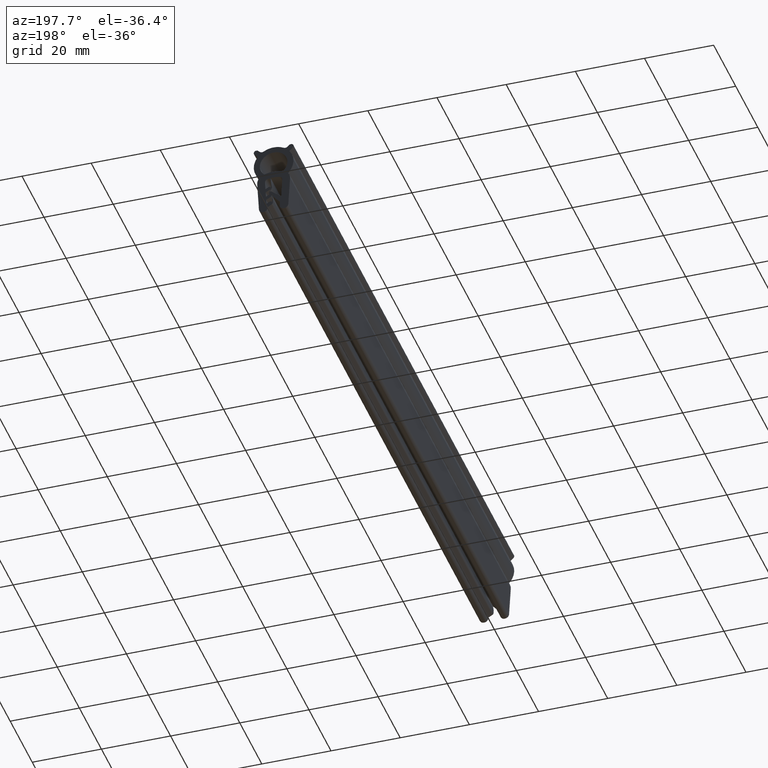
[diagram: clean part render]
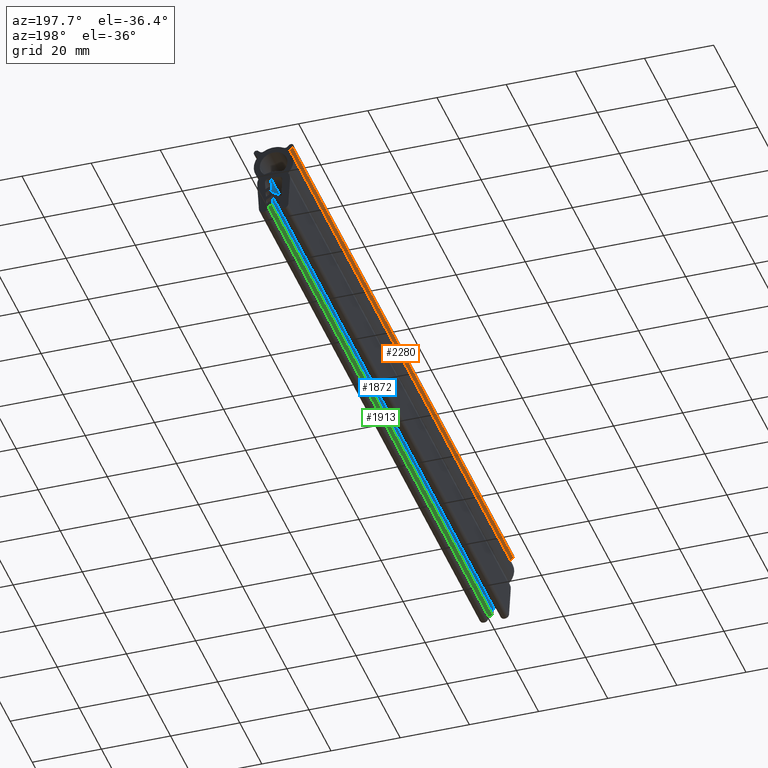
[diagram: same view with three faces highlighted in distinct colors, each labeled with its STEP entity id]
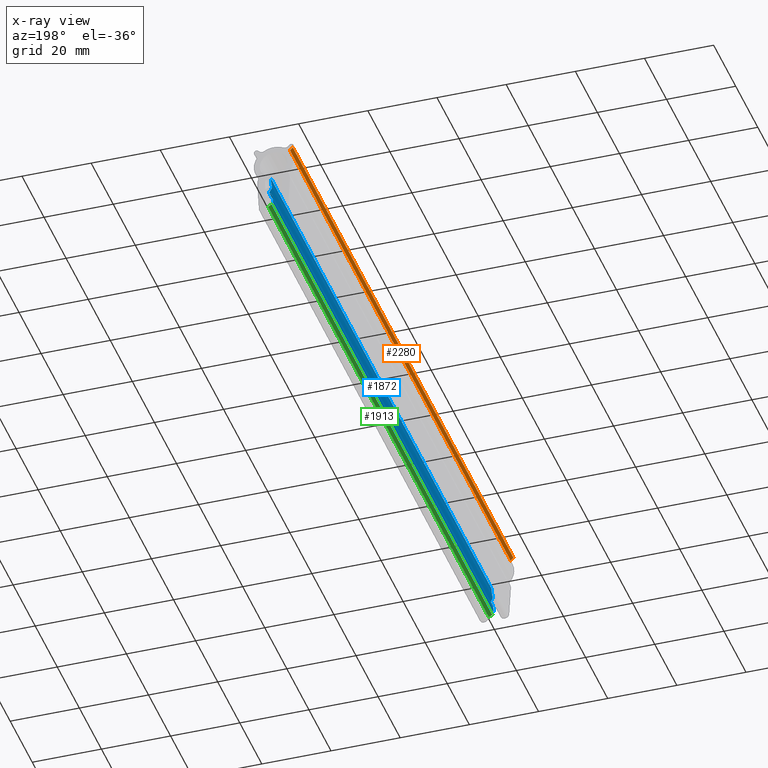
[diagram: x-ray of the same camera — body ghosted, the three highlighted faces saturated]
A machine part, auxiliary view with three faces highlighted in distinct colors.
The next image is the same camera in x-ray (body ghosted, the three faces saturated) — at least one of them is partly hidden behind the body in this view.
Their STEP definitions:

[orange] entity #2280 — the highlighted face is a freeform B-spline surface patch.
#531=CARTESIAN_POINT('',(-5.530330085891140,0.0,-1.280330090854470));
#532=VERTEX_POINT('',#531);
#550=CARTESIAN_POINT('',(-4.713625175068700,0.0,-2.097035001674310));
#551=VERTEX_POINT('',#550);
#552=CARTESIAN_POINT('',(-4.713625175068700,0.0,-2.097035001674310));
#553=CARTESIAN_POINT('',(-5.530330085891140,0.0,-1.280330090854470));
#554=QUASI_UNIFORM_CURVE('',1,(#552,#553),.UNSPECIFIED.,.F.,.U.);
#555=EDGE_CURVE('',#551,#532,#554,.T.);
#867=CARTESIAN_POINT('',(-4.713625175068700,200.0,-2.097035001674310));
#868=VERTEX_POINT('',#867);
#882=CARTESIAN_POINT('',(-5.530330085891140,200.0,-1.280330090854470));
#883=VERTEX_POINT('',#882);
#884=CARTESIAN_POINT('',(-4.713625175068700,200.0,-2.097035001674310));
#885=CARTESIAN_POINT('',(-5.530330085891140,200.0,-1.280330090854470));
#886=QUASI_UNIFORM_CURVE('',1,(#884,#885),.UNSPECIFIED.,.F.,.U.);
#887=EDGE_CURVE('',#868,#883,#886,.T.);
#2257=CARTESIAN_POINT('',(-5.530330085891140,200.0,-1.280330090854470));
#2258=CARTESIAN_POINT('',(-5.530330085891140,0.0,-1.280330090854470));
#2259=QUASI_UNIFORM_CURVE('',1,(#2257,#2258),.UNSPECIFIED.,.F.,.U.);
#2260=EDGE_CURVE('',#883,#532,#2259,.T.);
#2265=CARTESIAN_POINT('',(-5.571124566521406,-9.989999612361183,-1.239535610224336));
#2266=CARTESIAN_POINT('',(-4.672830679834593,-9.989999612361183,-2.137829496908246));
#2267=CARTESIAN_POINT('',(-5.571124566521406,209.990004976779200,-1.239535610224336));
#2268=CARTESIAN_POINT('',(-4.672830679834593,209.990004976779200,-2.137829496908246));
#2269=B_SPLINE_SURFACE_WITH_KNOTS('',1,1,((#2265,#2267),(#2266,#2268)),.UNSPECIFIED.,.F.,.F.,.U.,(2,2),(2,2),(0.041708261566609,0.958291753334552),(0.0,219.980004589140410),.UNSPECIFIED.);
#2270=ORIENTED_EDGE('',*,*,#555,.T.);
#2271=ORIENTED_EDGE('',*,*,#2260,.F.);
#2272=ORIENTED_EDGE('',*,*,#887,.F.);
#2273=CARTESIAN_POINT('',(-4.713625175068700,200.0,-2.097035001674310));
#2274=CARTESIAN_POINT('',(-4.713625175068700,0.0,-2.097035001674310));
#2275=QUASI_UNIFORM_CURVE('',1,(#2273,#2274),.UNSPECIFIED.,.F.,.U.);
#2276=EDGE_CURVE('',#868,#551,#2275,.T.);
#2277=ORIENTED_EDGE('',*,*,#2276,.T.);
#2278=EDGE_LOOP('',(#2270,#2271,#2272,#2277));
#2279=FACE_OUTER_BOUND('',#2278,.T.);
#2280=ADVANCED_FACE('',(#2279),#2269,.F.);

[blue] entity #1872 — the highlighted face is a freeform B-spline surface patch.
#303=CARTESIAN_POINT('',(0.849311063447986,0.0,-10.311185044823921));
#304=VERTEX_POINT('',#303);
#310=CARTESIAN_POINT('',(0.230599169711542,0.0,-18.812679840793098));
#311=VERTEX_POINT('',#310);
#312=CARTESIAN_POINT('',(0.230599169711543,0.0,-18.812679840793098));
#313=CARTESIAN_POINT('',(0.102305031512055,0.0,-18.062404450542349));
#314=CARTESIAN_POINT('',(0.282324142546382,0.0,-17.043546452097001));
#315=CARTESIAN_POINT('',(0.558853288640762,0.0,-15.747530114465500));
#316=CARTESIAN_POINT('',(1.312969142138676,0.0,-15.523041864377999));
#317=CARTESIAN_POINT('',(1.099577878881012,0.0,-14.685757533817281));
#318=CARTESIAN_POINT('',(0.196522846896767,0.0,-13.834720515642680));
#319=CARTESIAN_POINT('',(0.799109094746658,0.0,-12.051095444185441));
#320=CARTESIAN_POINT('',(0.797147904851861,0.0,-10.900677077333700));
#321=CARTESIAN_POINT('',(0.849311063447986,0.0,-10.311185044823921));
#322=B_SPLINE_CURVE_WITH_KNOTS('',3,(#312,#313,#314,#315,#316,#317,#318,#319,#320,#321),.UNSPECIFIED.,.F.,.U.,(4,1,1,1,1,1,1,4),(0.0,0.253754393163780,0.344760346092630,0.417671691379562,0.448313659490894,0.604227959092973,0.802636675275775,1.0),.UNSPECIFIED.);
#323=EDGE_CURVE('',#311,#304,#322,.T.);
#1099=CARTESIAN_POINT('',(0.230599169711542,200.0,-18.812679840793098));
#1100=VERTEX_POINT('',#1099);
#1114=CARTESIAN_POINT('',(0.849311063447986,200.0,-10.311185044823921));
#1115=VERTEX_POINT('',#1114);
#1116=CARTESIAN_POINT('',(0.230599169711543,199.999999999999890,-18.812679840793098));
#1117=CARTESIAN_POINT('',(0.102305031512055,199.999999999999890,-18.062404450542349));
#1118=CARTESIAN_POINT('',(0.282324142546382,199.999999999999890,-17.043546452097001));
#1119=CARTESIAN_POINT('',(0.558853288640762,199.999999999999890,-15.747530114465500));
#1120=CARTESIAN_POINT('',(1.312969142138676,199.999999999999890,-15.523041864377999));
#1121=CARTESIAN_POINT('',(1.099577878881012,199.999999999999890,-14.685757533817281));
#1122=CARTESIAN_POINT('',(0.196522846896767,199.999999999999890,-13.834720515642680));
#1123=CARTESIAN_POINT('',(0.799109094746658,199.999999999999890,-12.051095444185441));
#1124=CARTESIAN_POINT('',(0.797147904851861,199.999999999999890,-10.900677077333700));
#1125=CARTESIAN_POINT('',(0.849311063447986,199.999999999999890,-10.311185044823921));
#1126=B_SPLINE_CURVE_WITH_KNOTS('',3,(#1116,#1117,#1118,#1119,#1120,#1121,#1122,#1123,#1124,#1125),.UNSPECIFIED.,.F.,.U.,(4,1,1,1,1,1,1,4),(0.0,0.253754393163780,0.344760346092630,0.417671691379562,0.448313659490894,0.604227959092973,0.802636675275775,1.0),.UNSPECIFIED.);
#1127=EDGE_CURVE('',#1100,#1115,#1126,.T.);
#1833=CARTESIAN_POINT('',(0.849311063447986,200.0,-10.311185044823921));
#1834=CARTESIAN_POINT('',(0.849311063447986,0.0,-10.311185044823921));
#1835=QUASI_UNIFORM_CURVE('',1,(#1833,#1834),.UNSPECIFIED.,.F.,.U.);
#1836=EDGE_CURVE('',#1115,#304,#1835,.T.);
#1841=CARTESIAN_POINT('',(0.230599169711543,199.999999999999890,-18.812679840793098));
#1842=CARTESIAN_POINT('',(0.102305031512055,199.999999999999890,-18.062404450542349));
#1843=CARTESIAN_POINT('',(0.282324142546382,199.999999999999890,-17.043546452097001));
#1844=CARTESIAN_POINT('',(0.558853288640762,199.999999999999890,-15.747530114465500));
#1845=CARTESIAN_POINT('',(1.312969142138676,199.999999999999890,-15.523041864377999));
#1846=CARTESIAN_POINT('',(1.099577878881012,199.999999999999890,-14.685757533817281));
#1847=CARTESIAN_POINT('',(0.196522846896767,199.999999999999890,-13.834720515642680));
#1848=CARTESIAN_POINT('',(0.799109094746658,199.999999999999890,-12.051095444185441));
#1849=CARTESIAN_POINT('',(0.797147904851861,199.999999999999890,-10.900677077333700));
#1850=CARTESIAN_POINT('',(0.849311063447986,199.999999999999890,-10.311185044823921));
#1851=CARTESIAN_POINT('',(0.230599169711543,0.0,-18.812679840793098));
#1852=CARTESIAN_POINT('',(0.102305031512055,0.0,-18.062404450542349));
#1853=CARTESIAN_POINT('',(0.282324142546382,0.0,-17.043546452097001));
#1854=CARTESIAN_POINT('',(0.558853288640762,0.0,-15.747530114465500));
#1855=CARTESIAN_POINT('',(1.312969142138676,0.0,-15.523041864377999));
#1856=CARTESIAN_POINT('',(1.099577878881012,0.0,-14.685757533817281));
#1857=CARTESIAN_POINT('',(0.196522846896767,0.0,-13.834720515642680));
#1858=CARTESIAN_POINT('',(0.799109094746658,0.0,-12.051095444185441));
#1859=CARTESIAN_POINT('',(0.797147904851861,0.0,-10.900677077333700));
#1860=CARTESIAN_POINT('',(0.849311063447986,0.0,-10.311185044823921));
#1861=B_SPLINE_SURFACE_WITH_KNOTS('',3,1,((#1841,#1851),(#1842,#1852),(#1843,#1853),(#1844,#1854),(#1845,#1855),(#1846,#1856),(#1847,#1857),(#1848,#1858),(#1849,#1859),(#1850,#1860)),.UNSPECIFIED.,.F.,.F.,.U.,(4,1,1,1,1,1,1,4),(2,2),(0.0,2.373538443559314,3.224779382390892,3.906769076647984,4.193384367882068,5.651757479741093,7.507609942138376,9.353684143026312),(0.0,199.999999999999890),.UNSPECIFIED.);
#1862=ORIENTED_EDGE('',*,*,#323,.T.);
#1863=ORIENTED_EDGE('',*,*,#1836,.F.);
#1864=ORIENTED_EDGE('',*,*,#1127,.F.);
#1865=CARTESIAN_POINT('',(0.230599169711542,200.0,-18.812679840793098));
#1866=CARTESIAN_POINT('',(0.230599169711542,0.0,-18.812679840793098));
#1867=QUASI_UNIFORM_CURVE('',1,(#1865,#1866),.UNSPECIFIED.,.F.,.U.);
#1868=EDGE_CURVE('',#1100,#311,#1867,.T.);
#1869=ORIENTED_EDGE('',*,*,#1868,.T.);
#1870=EDGE_LOOP('',(#1862,#1863,#1864,#1869));
#1871=FACE_OUTER_BOUND('',#1870,.T.);
#1872=ADVANCED_FACE('',(#1871),#1861,.F.);

[green] entity #1913 — the highlighted face is a freeform B-spline surface patch.
#325=CARTESIAN_POINT('',(0.604677625245561,0.0,-19.425030796358449));
#326=VERTEX_POINT('',#325);
#340=CARTESIAN_POINT('',(1.623487153696905,0.0,-20.013240751863449));
#341=VERTEX_POINT('',#340);
#342=CARTESIAN_POINT('',(1.623487153696905,0.0,-20.013240751863449));
#343=CARTESIAN_POINT('',(0.604677625245561,0.0,-19.425030796358449));
#344=QUASI_UNIFORM_CURVE('',1,(#342,#343),.UNSPECIFIED.,.F.,.U.);
#345=EDGE_CURVE('',#341,#326,#344,.T.);
#1077=CARTESIAN_POINT('',(1.623487153696905,200.0,-20.013240751863449));
#1078=VERTEX_POINT('',#1077);
#1092=CARTESIAN_POINT('',(0.604677625245561,200.0,-19.425030796358449));
#1093=VERTEX_POINT('',#1092);
#1094=CARTESIAN_POINT('',(1.623487153696905,200.0,-20.013240751863449));
#1095=CARTESIAN_POINT('',(0.604677625245561,200.0,-19.425030796358449));
#1096=QUASI_UNIFORM_CURVE('',1,(#1094,#1095),.UNSPECIFIED.,.F.,.U.);
#1097=EDGE_CURVE('',#1078,#1093,#1096,.T.);
#1890=CARTESIAN_POINT('',(0.604677625245561,200.0,-19.425030796358449));
#1891=CARTESIAN_POINT('',(0.604677625245561,0.0,-19.425030796358449));
#1892=QUASI_UNIFORM_CURVE('',1,(#1890,#1891),.UNSPECIFIED.,.F.,.U.);
#1893=EDGE_CURVE('',#1093,#326,#1892,.T.);
#1898=CARTESIAN_POINT('',(0.553788473828274,-9.989999612361183,-19.395649931088791));
#1899=CARTESIAN_POINT('',(1.674376696795509,-9.989999612361183,-20.042621843270350));
#1900=CARTESIAN_POINT('',(0.553788473828274,209.990004976779200,-19.395649931088791));
#1901=CARTESIAN_POINT('',(1.674376696795509,209.990004976779200,-20.042621843270350));
#1902=B_SPLINE_SURFACE_WITH_KNOTS('',1,1,((#1898,#1900),(#1899,#1901)),.UNSPECIFIED.,.F.,.F.,.U.,(2,2),(2,2),(0.041708647857979,0.958291672516987),(0.0,219.980004589140410),.UNSPECIFIED.);
#1903=ORIENTED_EDGE('',*,*,#345,.T.);
#1904=ORIENTED_EDGE('',*,*,#1893,.F.);
#1905=ORIENTED_EDGE('',*,*,#1097,.F.);
#1906=CARTESIAN_POINT('',(1.623487153696905,200.0,-20.013240751863449));
#1907=CARTESIAN_POINT('',(1.623487153696905,0.0,-20.013240751863449));
#1908=QUASI_UNIFORM_CURVE('',1,(#1906,#1907),.UNSPECIFIED.,.F.,.U.);
#1909=EDGE_CURVE('',#1078,#341,#1908,.T.);
#1910=ORIENTED_EDGE('',*,*,#1909,.T.);
#1911=EDGE_LOOP('',(#1903,#1904,#1905,#1910));
#1912=FACE_OUTER_BOUND('',#1911,.T.);
#1913=ADVANCED_FACE('',(#1912),#1902,.F.);